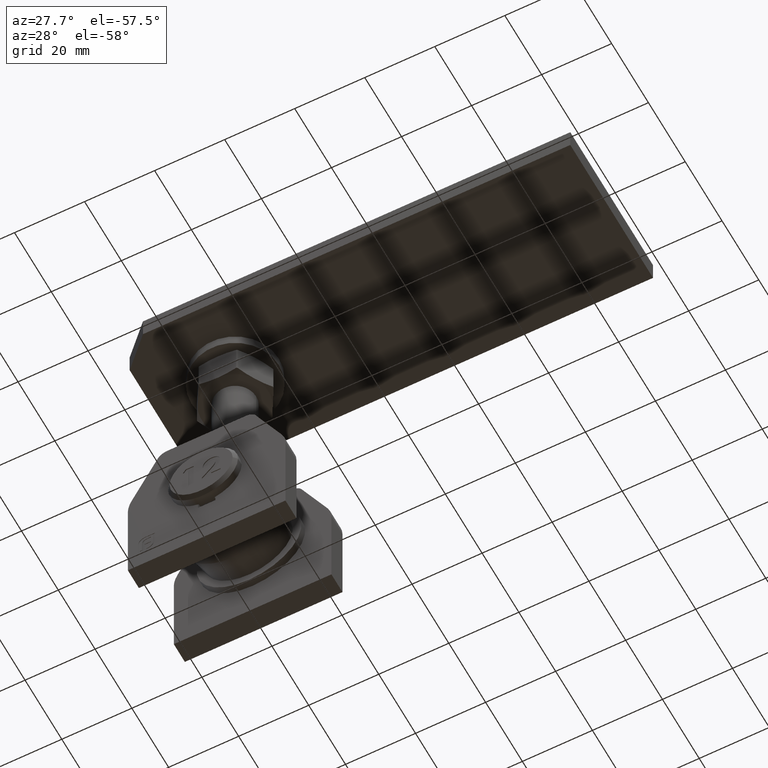
[diagram: clean part render]
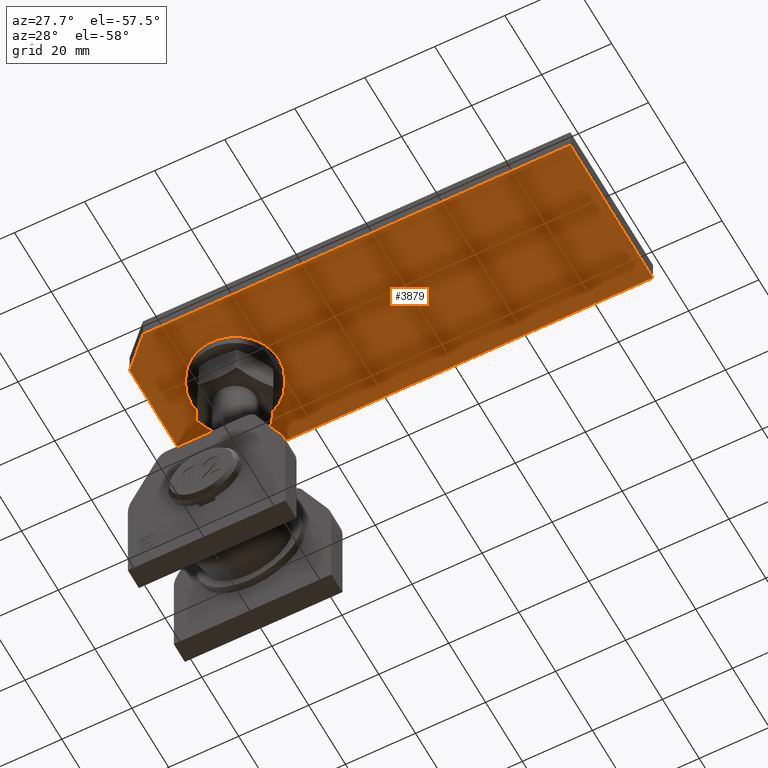
[diagram: same view with one face highlighted and labeled with its STEP entity id]
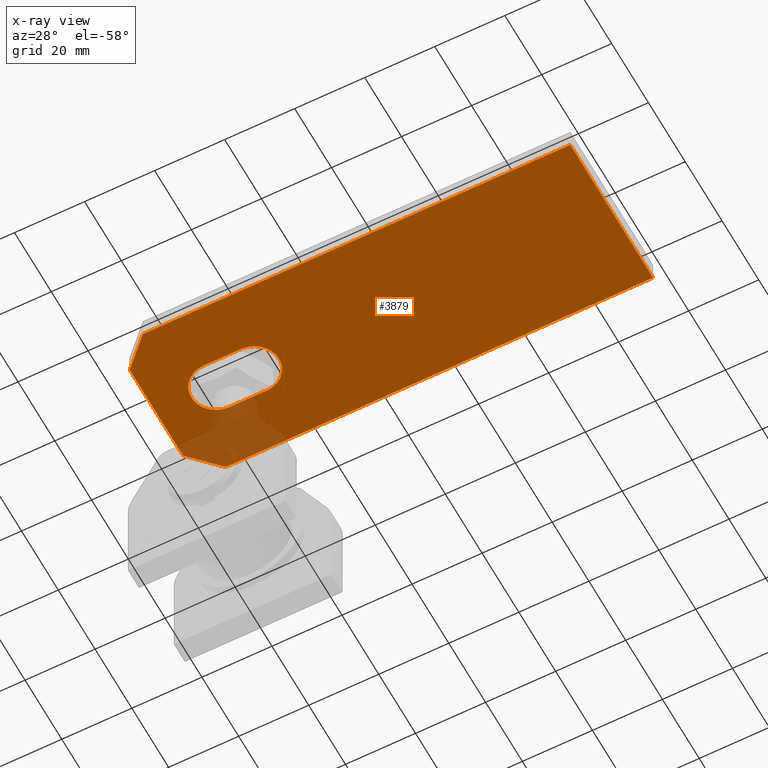
[diagram: x-ray of the same camera — body ghosted, the highlighted face saturated]
A machine part, auxiliary view. The second image highlights one B-rep face of the part: STEP entity #3879.
The next image is the same camera in x-ray: the body ghosted, the highlighted face saturated — about 5% of this face is hidden behind the body in this view.
In plain terms, the highlighted planar face has unit normal (0, 0, 1).
Its self-contained STEP definition (entity closure, byte-faithful):
#44 = EDGE_CURVE ( 'NONE', #16189, #15222, #3036, .T. ) ;
#363 = CARTESIAN_POINT ( 'NONE',  ( -65.00000000000000000, 22.50000000000000000, -3.000000000000002665 ) ) ;
#434 = DIRECTION ( 'NONE',  ( 1.000000000000000000, 0.000000000000000000, 0.000000000000000000 ) ) ;
#713 = LINE ( 'NONE', #6202, #2857 ) ;
#1054 = CARTESIAN_POINT ( 'NONE',  ( -57.00000000000000711, -22.50000000000000000, -3.000000000000002665 ) ) ;
#1287 = EDGE_CURVE ( 'NONE', #3974, #20774, #16576, .T. ) ;
#1408 = EDGE_CURVE ( 'NONE', #15180, #20579, #21889, .T. ) ;
#1486 = ORIENTED_EDGE ( 'NONE', *, *, #14634, .T. ) ;
#2137 = FACE_OUTER_BOUND ( 'NONE', #13202, .T. ) ;
#2368 = ORIENTED_EDGE ( 'NONE', *, *, #1408, .F. ) ;
#2380 = ORIENTED_EDGE ( 'NONE', *, *, #4985, .T. ) ;
#2773 = CARTESIAN_POINT ( 'NONE',  ( -48.00000000000000000, 6.999999999999999112, -3.000000000000002665 ) ) ;
#2857 = VECTOR ( 'NONE', #7836, 1000.000000000000000 ) ;
#3036 = CIRCLE ( 'NONE', #11358, 6.999999999999999112 ) ;
#3076 = DIRECTION ( 'NONE',  ( 1.000000000000000000, 0.000000000000000000, 0.000000000000000000 ) ) ;
#3879 = ADVANCED_FACE ( 'NONE', ( #2137, #5598 ), #20649, .F. ) ;
#3974 = VERTEX_POINT ( 'NONE', #18938 ) ;
#4191 = EDGE_LOOP ( 'NONE', ( #13097, #1486, #8262, #2380 ) ) ;
#4518 = CARTESIAN_POINT ( 'NONE',  ( -37.00000000000000000, 6.999999999999999112, -3.000000000000002665 ) ) ;
#4927 = AXIS2_PLACEMENT_3D ( 'NONE', #17601, #19532, #15873 ) ;
#4975 = DIRECTION ( 'NONE',  ( 0.000000000000000000, 0.000000000000000000, 1.000000000000000000 ) ) ;
#4985 = EDGE_CURVE ( 'NONE', #15222, #3974, #12750, .T. ) ;
#5132 = CARTESIAN_POINT ( 'NONE',  ( -65.00000000000000000, 14.50000000000001954, -3.000000000000002665 ) ) ;
#5377 = VERTEX_POINT ( 'NONE', #15659 ) ;
#5598 = FACE_BOUND ( 'NONE', #4191, .T. ) ;
#6000 = CARTESIAN_POINT ( 'NONE',  ( -65.00000000000000000, 14.50000000000002487, -3.000000000000002665 ) ) ;
#6202 = CARTESIAN_POINT ( 'NONE',  ( 65.00000000000000000, 22.50000000000000000, -3.000000000000002665 ) ) ;
#6734 = EDGE_CURVE ( 'NONE', #9282, #9529, #713, .T. ) ;
#6750 = VECTOR ( 'NONE', #9666, 999.9999999999998863 ) ;
#7575 = ORIENTED_EDGE ( 'NONE', *, *, #14304, .T. ) ;
#7836 = DIRECTION ( 'NONE',  ( -3.083952846180990774E-16, 1.000000000000000000, -0.000000000000000000 ) ) ;
#8262 = ORIENTED_EDGE ( 'NONE', *, *, #44, .T. ) ;
#8589 = LINE ( 'NONE', #5132, #10991 ) ;
#8762 = CARTESIAN_POINT ( 'NONE',  ( -56.99999999999998579, 22.50000000000000000, -3.000000000000002665 ) ) ;
#9282 = VERTEX_POINT ( 'NONE', #20669 ) ;
#9529 = VERTEX_POINT ( 'NONE', #11109 ) ;
#9666 = DIRECTION ( 'NONE',  ( -0.7071067811865462405, 0.7071067811865489050, -0.000000000000000000 ) ) ;
#9930 = VECTOR ( 'NONE', #434, 1000.000000000000000 ) ;
#10212 = CARTESIAN_POINT ( 'NONE',  ( 0.000000000000000000, 0.000000000000000000, -3.000000000000002665 ) ) ;
#10619 = EDGE_CURVE ( 'NONE', #15180, #21271, #8589, .T. ) ;
#10620 = ORIENTED_EDGE ( 'NONE', *, *, #12160, .F. ) ;
#10991 = VECTOR ( 'NONE', #12020, 1000.000000000000114 ) ;
#11109 = CARTESIAN_POINT ( 'NONE',  ( 65.00000000000000000, 22.50000000000000000, -3.000000000000002665 ) ) ;
#11358 = AXIS2_PLACEMENT_3D ( 'NONE', #20498, #4975, #21981 ) ;
#11590 = CARTESIAN_POINT ( 'NONE',  ( -64.99999999999998579, -22.50000000000000000, -3.000000000000002665 ) ) ;
#11808 = LINE ( 'NONE', #1054, #6750 ) ;
#12020 = DIRECTION ( 'NONE',  ( 0.7071067811865490160, 0.7071067811865460184, -0.000000000000000000 ) ) ;
#12160 = EDGE_CURVE ( 'NONE', #5377, #9282, #20003, .T. ) ;
#12631 = AXIS2_PLACEMENT_3D ( 'NONE', #10212, #17149, #17079 ) ;
#12750 = LINE ( 'NONE', #2773, #21802 ) ;
#13097 = ORIENTED_EDGE ( 'NONE', *, *, #1287, .T. ) ;
#13121 = LINE ( 'NONE', #363, #18481 ) ;
#13202 = EDGE_LOOP ( 'NONE', ( #10620, #7575, #2368, #16001, #19349, #14867 ) ) ;
#14304 = EDGE_CURVE ( 'NONE', #5377, #20579, #11808, .T. ) ;
#14520 = DIRECTION ( 'NONE',  ( 3.083952846180990774E-16, -1.000000000000000000, 0.000000000000000000 ) ) ;
#14602 = EDGE_CURVE ( 'NONE', #9529, #21271, #13121, .T. ) ;
#14634 = EDGE_CURVE ( 'NONE', #20774, #16189, #15248, .T. ) ;
#14867 = ORIENTED_EDGE ( 'NONE', *, *, #6734, .F. ) ;
#15180 = VERTEX_POINT ( 'NONE', #6000 ) ;
#15222 = VERTEX_POINT ( 'NONE', #4518 ) ;
#15248 = LINE ( 'NONE', #20688, #9930 ) ;
#15659 = CARTESIAN_POINT ( 'NONE',  ( -57.00000000000000711, -22.50000000000000000, -3.000000000000002665 ) ) ;
#15873 = DIRECTION ( 'NONE',  ( 1.000000000000000000, 0.000000000000000000, 0.000000000000000000 ) ) ;
#16001 = ORIENTED_EDGE ( 'NONE', *, *, #10619, .T. ) ;
#16189 = VERTEX_POINT ( 'NONE', #19114 ) ;
#16317 = CARTESIAN_POINT ( 'NONE',  ( -65.00000000000000000, 22.50000000000000000, -3.000000000000002665 ) ) ;
#16576 = CIRCLE ( 'NONE', #4927, 6.999999999999999112 ) ;
#17079 = DIRECTION ( 'NONE',  ( 1.000000000000000000, 0.000000000000000000, 0.000000000000000000 ) ) ;
#17149 = DIRECTION ( 'NONE',  ( -0.000000000000000000, 0.000000000000000000, 1.000000000000000000 ) ) ;
#17359 = CARTESIAN_POINT ( 'NONE',  ( -48.00000000000000000, -6.999999999999999112, -3.000000000000002665 ) ) ;
#17561 = DIRECTION ( 'NONE',  ( -1.000000000000000000, -0.000000000000000000, -0.000000000000000000 ) ) ;
#17601 = CARTESIAN_POINT ( 'NONE',  ( -48.00000000000000000, 0.000000000000000000, -3.000000000000002665 ) ) ;
#18253 = DIRECTION ( 'NONE',  ( -1.000000000000000000, -0.000000000000000000, -0.000000000000000000 ) ) ;
#18481 = VECTOR ( 'NONE', #17561, 1000.000000000000000 ) ;
#18938 = CARTESIAN_POINT ( 'NONE',  ( -48.00000000000000000, 6.999999999999999112, -3.000000000000002665 ) ) ;
#19114 = CARTESIAN_POINT ( 'NONE',  ( -37.00000000000000000, -6.999999999999999112, -3.000000000000002665 ) ) ;
#19172 = CARTESIAN_POINT ( 'NONE',  ( -64.99999999999998579, -14.49999999999997868, -3.000000000000002665 ) ) ;
#19349 = ORIENTED_EDGE ( 'NONE', *, *, #14602, .F. ) ;
#19532 = DIRECTION ( 'NONE',  ( 0.000000000000000000, 0.000000000000000000, 1.000000000000000000 ) ) ;
#20003 = LINE ( 'NONE', #11590, #20260 ) ;
#20260 = VECTOR ( 'NONE', #3076, 1000.000000000000000 ) ;
#20498 = CARTESIAN_POINT ( 'NONE',  ( -37.00000000000000000, 0.000000000000000000, -3.000000000000002665 ) ) ;
#20579 = VERTEX_POINT ( 'NONE', #19172 ) ;
#20649 = PLANE ( 'NONE',  #12631 ) ;
#20669 = CARTESIAN_POINT ( 'NONE',  ( 65.00000000000001421, -22.50000000000000000, -3.000000000000002665 ) ) ;
#20688 = CARTESIAN_POINT ( 'NONE',  ( -48.00000000000000000, -6.999999999999999112, -3.000000000000002665 ) ) ;
#20774 = VERTEX_POINT ( 'NONE', #17359 ) ;
#21271 = VERTEX_POINT ( 'NONE', #8762 ) ;
#21351 = VECTOR ( 'NONE', #14520, 1000.000000000000000 ) ;
#21802 = VECTOR ( 'NONE', #18253, 1000.000000000000000 ) ;
#21889 = LINE ( 'NONE', #16317, #21351 ) ;
#21981 = DIRECTION ( 'NONE',  ( 1.000000000000000000, 0.000000000000000000, 0.000000000000000000 ) ) ;